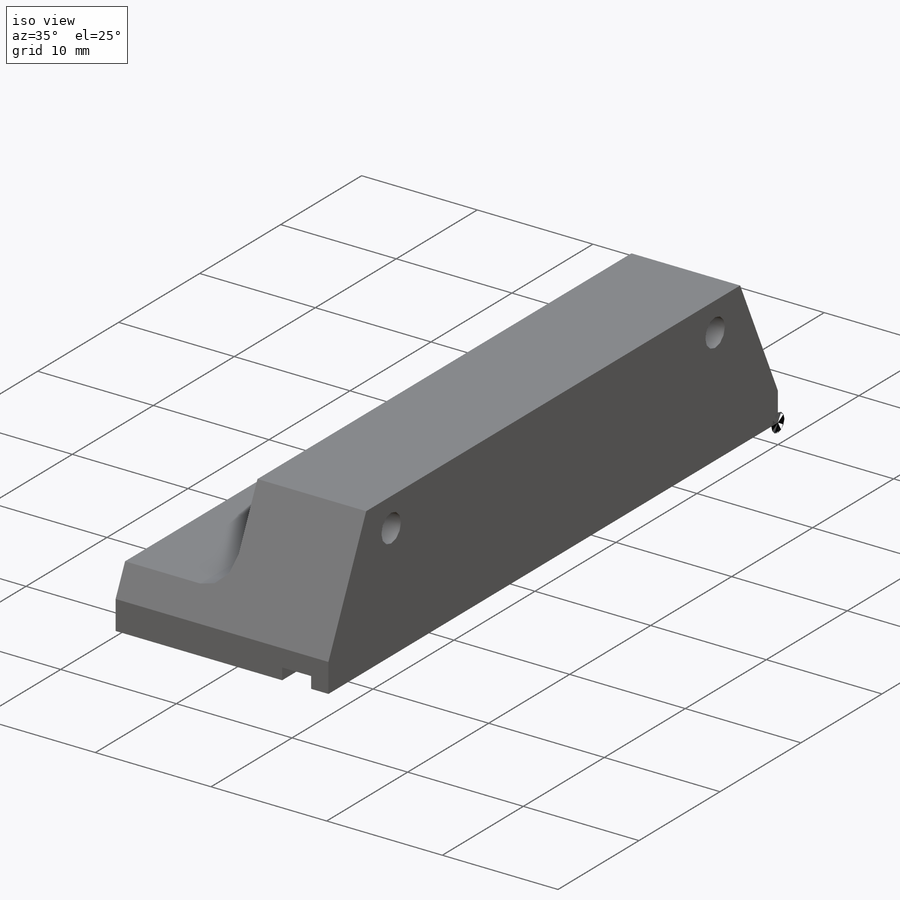
[diagram: iso view]
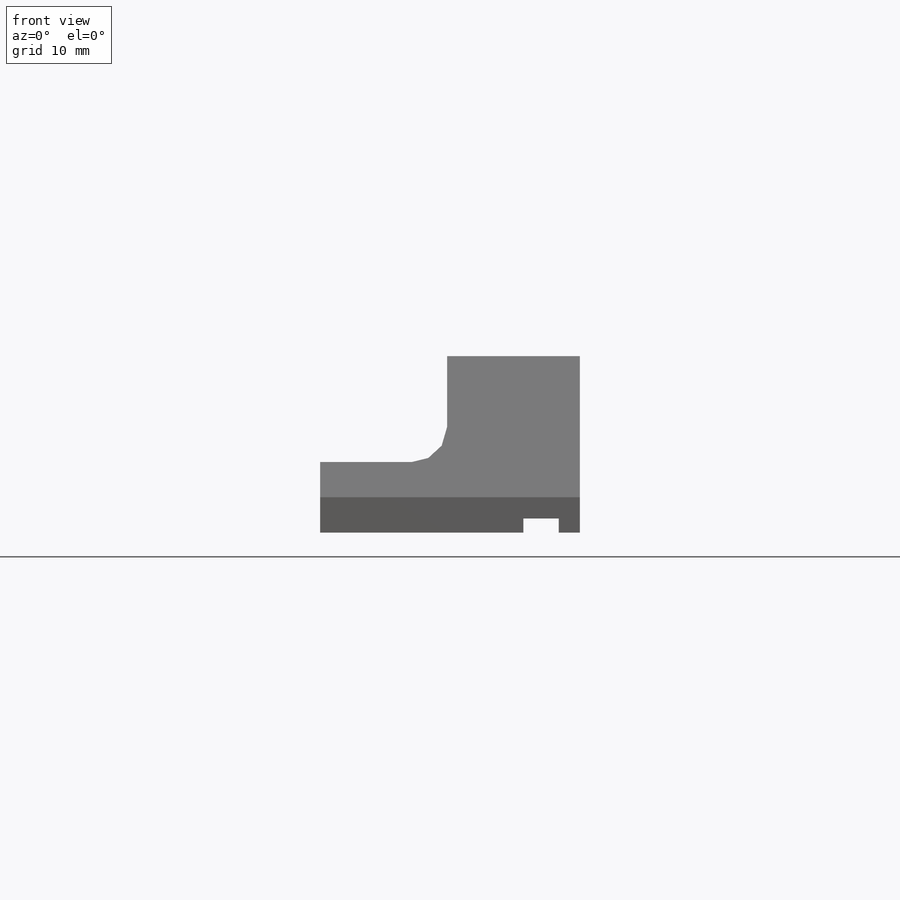
[diagram: front view]
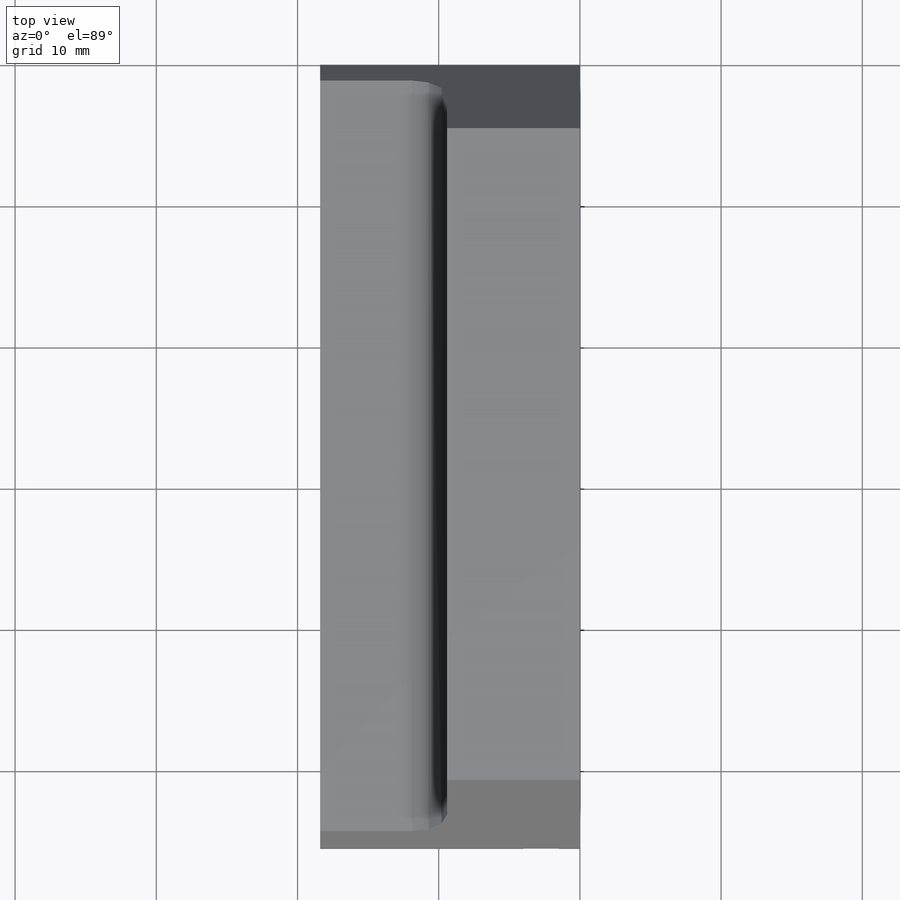
[diagram: top view]
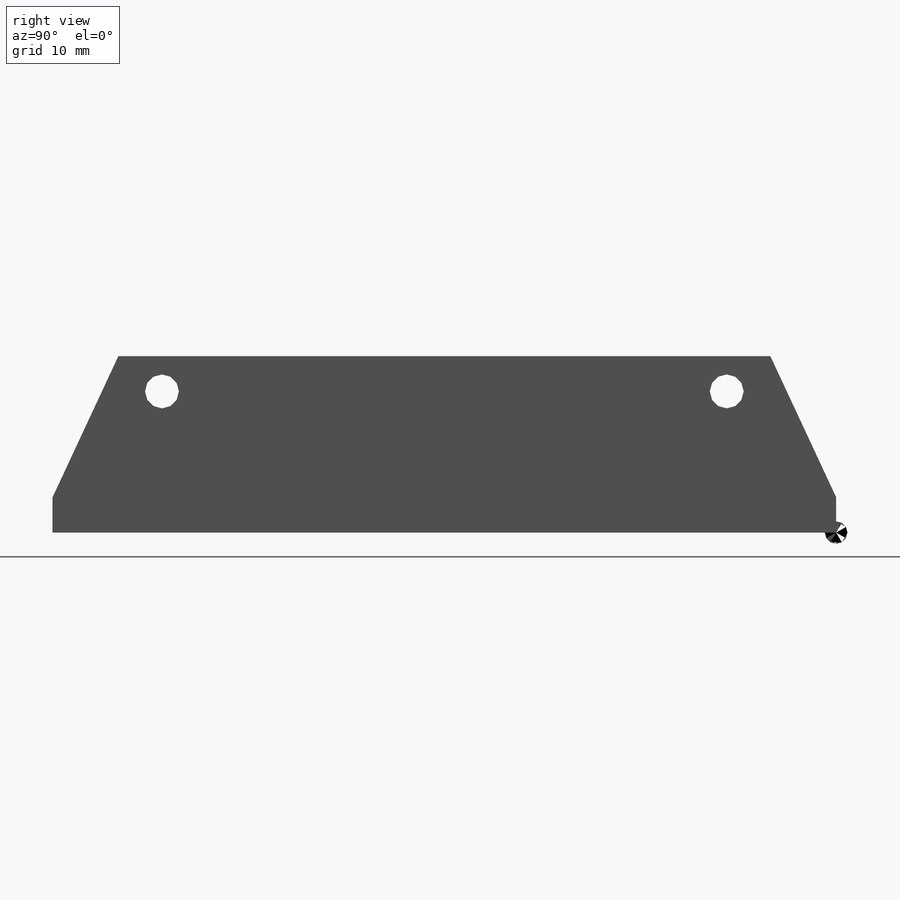
[diagram: right view]
SOLIDWORKS PART (.sldprt)
format: sldprt  version: not decoded by parser v0  size: 304,128 bytes
history: native  units: mm
features: sketch x7, cut_extrude x2, hole x2, chamfer x2, fillet x2, material x1, extrude x1 (+12 scaffold rows collapsed)
feature tree (29):
  scaffold x12  (default folders/planes/origin — collapsed)
  material  "Polyetheretherketone (PEEK)"
  sketch  "Sketch1"  dims[c1.D1=~18.438946mm c1.D2=~42.286649mm c2.D1=18.4mm c2.D2=12.5mm]
  extrude  "Boss-Extrude1"  Depth=55.5mm
  sketch  "Sketch2"  dims[D1=1.0mm D2=2.5mm D3=1.5mm]
  cut_extrude  "Cut-Extrude1"  [1 undecoded]
  hole  "M2x0.4 Tapped Hole1"  Diameter=1.6mm Depth=6.5mm
  sketch  "Sketch4"  dims[c1.D1=2.0mm c1.D2=24.0mm c2.D1=3.0mm]
  sketch  "Sketch3"  dims[hole-wizard template sketch: 28 standard entries collapsed; hole parameters kept: c8.Tap Drill Dia.=1.6mm c8.Tap Drill Depth=6.5mm c8.Thread Major Dia.=2.0mm c8.Thread Depth=4.5mm c8.D5=~14.816244mm c8.Drill Angle=118.0deg]
  hole  "CBORE for M2 SHCS1"  Diameter=2.4mm Depth=18.4mm
  sketch  "Sketch6"  dims[D1=40.0mm D2=10.0mm]
  sketch  "Sketch5"  dims[hole-wizard template sketch: 42 standard entries collapsed; hole parameters kept: c12.Thru Hole Depth=18.4mm c12.C'Bore Dia.=4.4mm c12.C'Bore Depth=10.9mm]
  chamfer  "Chamfer1"  Distance=10mm Angle=25deg
  chamfer  "Chamfer2"  Distance=10mm Angle=25deg
  fillet  "Fillet1"  Radius=6mm
  sketch  "Sketch7"  dims[D1=5.0mm]
  cut_extrude  "Cut-Extrude2"  Depth=9mm
  fillet  "Fillet2"  Radius=2.5mm
decode coverage: 15 of 16 modeling features carry decoded parameters
note: ~ marks probable driven/reference dimensions
note: 1 parameter value undecoded
note: suppression state not decoded; provenance and decode notes live in map.json
